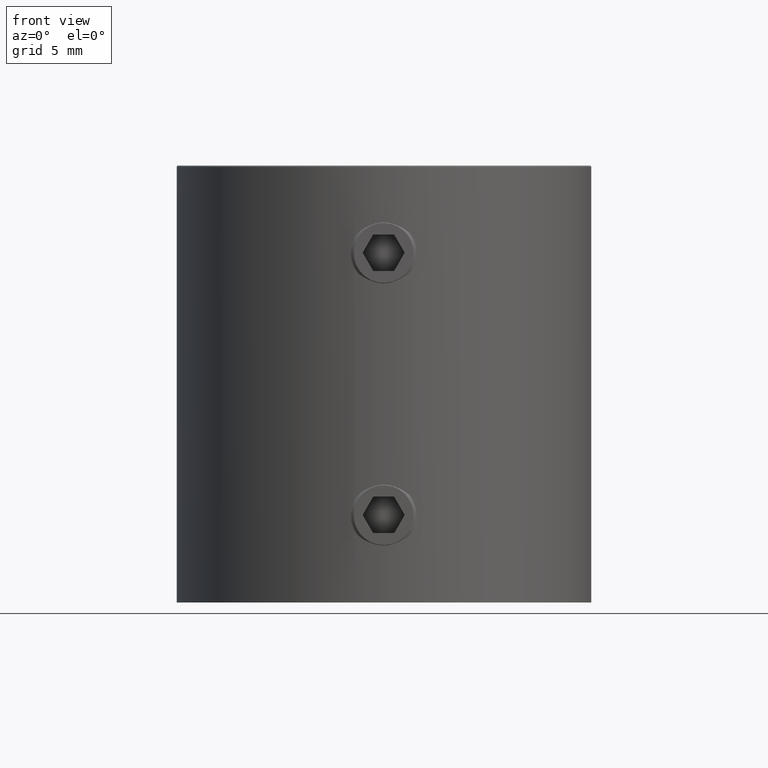
[diagram: clean part render]
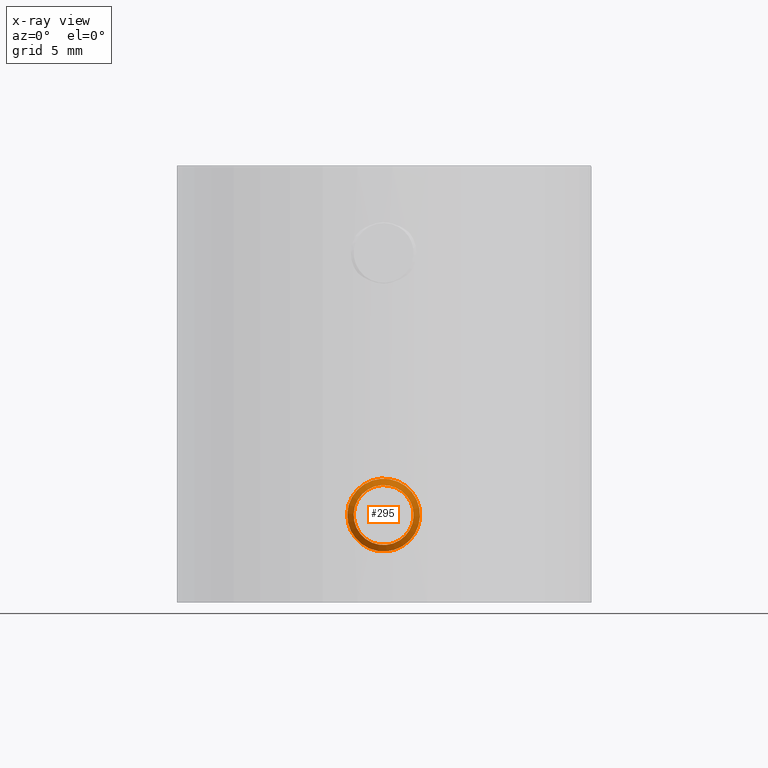
[diagram: x-ray — body ghosted, one internal face saturated and labeled with its STEP entity id]
A machine part, front view, then the same camera in x-ray: the body is ghosted and one INTERNAL B-rep face — a face not visible from any outside direction — is saturated and labeled: STEP entity #295.
In plain terms, the highlighted conical surface has half-angle 55 deg.
Its self-contained STEP definition (entity closure, byte-faithful):
#295 = ADVANCED_FACE ( 'NONE', ( #14157, #13202 ), #2724, .T. ) ;
#802 = CARTESIAN_POINT ( 'NONE',  ( 0.5685132242927015689, -2.500000000000000000, 0.000000000000000000 ) ) ;
#1848 = CARTESIAN_POINT ( 'NONE',  ( 0.5685132242927012358, 4.584330080086930965E-16, 0.000000000000000000 ) ) ;
#2052 = VERTEX_POINT ( 'NONE', #3021 ) ;
#2530 = EDGE_CURVE ( 'NONE', #2052, #2052, #4788, .T. ) ;
#2724 = CONICAL_SURFACE ( 'NONE', #9955, 2.500000000000000444, 0.9599310885968830309 ) ;
#3021 = CARTESIAN_POINT ( 'NONE',  ( 0.2569208697893817228, -2.055000000000000160, 0.000000000000000000 ) ) ;
#3027 = DIRECTION ( 'NONE',  ( -1.000000000000000000, -1.224606353822377258E-16, -0.000000000000000000 ) ) ;
#4049 = CIRCLE ( 'NONE', #10808, 2.500000000000000444 ) ;
#4703 = AXIS2_PLACEMENT_3D ( 'NONE', #5943, #14273, #10751 ) ;
#4788 = CIRCLE ( 'NONE', #4703, 2.055000000000000604 ) ;
#5267 = ORIENTED_EDGE ( 'NONE', *, *, #2530, .F. ) ;
#5943 = CARTESIAN_POINT ( 'NONE',  ( 0.2569208697893814453, 4.202752102959690472E-16, 0.000000000000000000 ) ) ;
#5995 = DIRECTION ( 'NONE',  ( -1.301042606982605074E-16, 1.000000000000000000, 0.000000000000000000 ) ) ;
#6854 = EDGE_CURVE ( 'NONE', #13619, #13619, #4049, .T. ) ;
#7175 = CARTESIAN_POINT ( 'NONE',  ( 0.5685132242927012358, 4.584330080086930965E-16, 0.000000000000000000 ) ) ;
#9438 = EDGE_LOOP ( 'NONE', ( #12360 ) ) ;
#9955 = AXIS2_PLACEMENT_3D ( 'NONE', #7175, #11903, #5995 ) ;
#10751 = DIRECTION ( 'NONE',  ( 1.318980745116185161E-16, -1.000000000000000000, 0.000000000000000000 ) ) ;
#10808 = AXIS2_PLACEMENT_3D ( 'NONE', #1848, #3027, #14955 ) ;
#11903 = DIRECTION ( 'NONE',  ( 1.000000000000000000, 1.224606353822377258E-16, 0.000000000000000000 ) ) ;
#12360 = ORIENTED_EDGE ( 'NONE', *, *, #6854, .T. ) ;
#13202 = FACE_OUTER_BOUND ( 'NONE', #9438, .T. ) ;
#13291 = EDGE_LOOP ( 'NONE', ( #5267 ) ) ;
#13619 = VERTEX_POINT ( 'NONE', #802 ) ;
#14157 = FACE_BOUND ( 'NONE', #13291, .T. ) ;
#14273 = DIRECTION ( 'NONE',  ( -1.000000000000000000, -1.224606353822377258E-16, -0.000000000000000000 ) ) ;
#14955 = DIRECTION ( 'NONE',  ( 1.301042606982605074E-16, -1.000000000000000000, 0.000000000000000000 ) ) ;